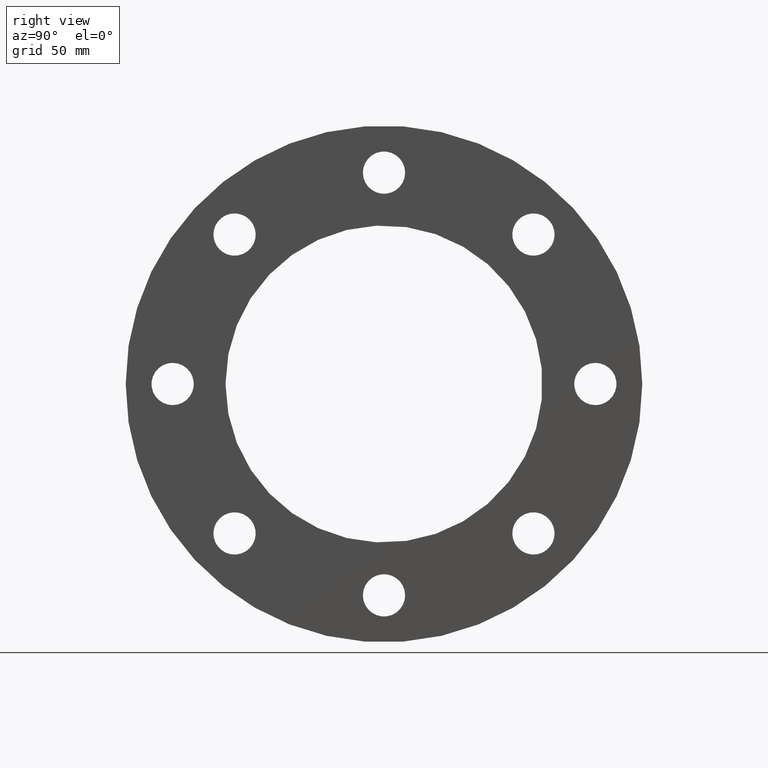
[diagram: clean part render]
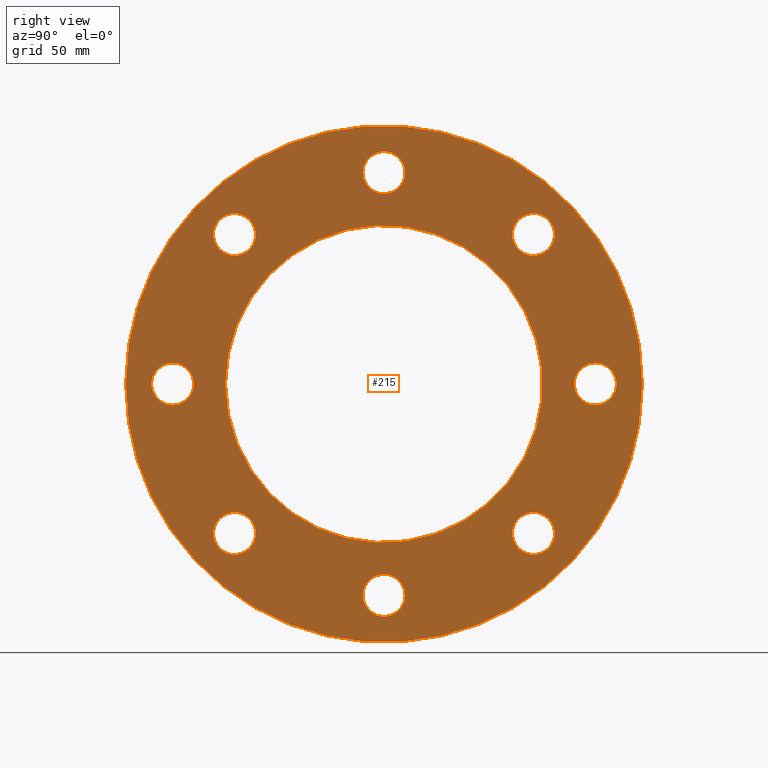
[diagram: same view with one face highlighted and labeled with its STEP entity id]
A machine part, right view. The second image highlights one B-rep face of the part: STEP entity #215.
In plain terms, the highlighted planar face has unit normal (1, 0, 0).
Its self-contained STEP definition (entity closure, byte-faithful):
#16=PLANE('',#245);
#26=FACE_BOUND('',#75,.T.);
#27=FACE_BOUND('',#76,.T.);
#28=FACE_BOUND('',#77,.T.);
#29=FACE_BOUND('',#78,.T.);
#30=FACE_BOUND('',#79,.T.);
#31=FACE_BOUND('',#80,.T.);
#32=FACE_BOUND('',#81,.T.);
#33=FACE_BOUND('',#82,.T.);
#34=FACE_BOUND('',#83,.T.);
#54=FACE_OUTER_BOUND('',#74,.T.);
#74=EDGE_LOOP('',(#174));
#75=EDGE_LOOP('',(#175));
#76=EDGE_LOOP('',(#176));
#77=EDGE_LOOP('',(#177));
#78=EDGE_LOOP('',(#178));
#79=EDGE_LOOP('',(#179));
#80=EDGE_LOOP('',(#180));
#81=EDGE_LOOP('',(#181));
#82=EDGE_LOOP('',(#182));
#83=EDGE_LOOP('',(#183));
#99=CIRCLE('',#223,9.);
#101=CIRCLE('',#226,9.);
#103=CIRCLE('',#229,9.);
#105=CIRCLE('',#232,9.);
#107=CIRCLE('',#235,9.);
#109=CIRCLE('',#238,9.);
#111=CIRCLE('',#241,9.);
#113=CIRCLE('',#244,9.);
#114=CIRCLE('',#246,110.);
#115=CIRCLE('',#247,67.5);
#119=VERTEX_POINT('',#323);
#121=VERTEX_POINT('',#328);
#123=VERTEX_POINT('',#333);
#125=VERTEX_POINT('',#338);
#127=VERTEX_POINT('',#343);
#129=VERTEX_POINT('',#348);
#131=VERTEX_POINT('',#353);
#133=VERTEX_POINT('',#358);
#134=VERTEX_POINT('',#361);
#135=VERTEX_POINT('',#363);
#139=EDGE_CURVE('',#119,#119,#99,.T.);
#141=EDGE_CURVE('',#121,#121,#101,.T.);
#143=EDGE_CURVE('',#123,#123,#103,.T.);
#145=EDGE_CURVE('',#125,#125,#105,.T.);
#147=EDGE_CURVE('',#127,#127,#107,.T.);
#149=EDGE_CURVE('',#129,#129,#109,.T.);
#151=EDGE_CURVE('',#131,#131,#111,.T.);
#153=EDGE_CURVE('',#133,#133,#113,.T.);
#154=EDGE_CURVE('',#134,#134,#114,.T.);
#155=EDGE_CURVE('',#135,#135,#115,.T.);
#174=ORIENTED_EDGE('',*,*,#154,.F.);
#175=ORIENTED_EDGE('',*,*,#139,.T.);
#176=ORIENTED_EDGE('',*,*,#141,.T.);
#177=ORIENTED_EDGE('',*,*,#143,.T.);
#178=ORIENTED_EDGE('',*,*,#145,.T.);
#179=ORIENTED_EDGE('',*,*,#147,.T.);
#180=ORIENTED_EDGE('',*,*,#149,.T.);
#181=ORIENTED_EDGE('',*,*,#151,.T.);
#182=ORIENTED_EDGE('',*,*,#153,.T.);
#183=ORIENTED_EDGE('',*,*,#155,.T.);
#215=ADVANCED_FACE('',(#54,#26,#27,#28,#29,#30,#31,#32,#33,#34),#16,.T.);
#223=AXIS2_PLACEMENT_3D('',#324,#259,#260);
#226=AXIS2_PLACEMENT_3D('',#329,#265,#266);
#229=AXIS2_PLACEMENT_3D('',#334,#271,#272);
#232=AXIS2_PLACEMENT_3D('',#339,#277,#278);
#235=AXIS2_PLACEMENT_3D('',#344,#283,#284);
#238=AXIS2_PLACEMENT_3D('',#349,#289,#290);
#241=AXIS2_PLACEMENT_3D('',#354,#295,#296);
#244=AXIS2_PLACEMENT_3D('',#359,#301,#302);
#245=AXIS2_PLACEMENT_3D('',#360,#303,#304);
#246=AXIS2_PLACEMENT_3D('',#362,#305,#306);
#247=AXIS2_PLACEMENT_3D('',#364,#307,#308);
#259=DIRECTION('center_axis',(-1.,0.,0.));
#260=DIRECTION('ref_axis',(0.,-0.707106781186548,0.707106781186547));
#265=DIRECTION('center_axis',(-1.,0.,0.));
#266=DIRECTION('ref_axis',(0.,-1.,-1.2335811384724E-16));
#271=DIRECTION('center_axis',(-1.,0.,0.));
#272=DIRECTION('ref_axis',(0.,-0.707106781186547,-0.707106781186548));
#277=DIRECTION('center_axis',(-1.,0.,0.));
#278=DIRECTION('ref_axis',(0.,1.2335811384724E-16,-1.));
#283=DIRECTION('center_axis',(-1.,0.,0.));
#284=DIRECTION('ref_axis',(0.,0.707106781186548,-0.707106781186547));
#289=DIRECTION('center_axis',(-1.,0.,0.));
#290=DIRECTION('ref_axis',(0.,1.,0.));
#295=DIRECTION('center_axis',(-1.,0.,0.));
#296=DIRECTION('ref_axis',(0.,0.707106781186547,0.707106781186548));
#301=DIRECTION('center_axis',(-1.,0.,0.));
#302=DIRECTION('ref_axis',(0.,0.,1.));
#303=DIRECTION('center_axis',(1.,0.,0.));
#304=DIRECTION('ref_axis',(0.,0.,-1.));
#305=DIRECTION('center_axis',(-1.,0.,0.));
#306=DIRECTION('ref_axis',(0.,0.,1.));
#307=DIRECTION('center_axis',(-1.,0.,0.));
#308=DIRECTION('ref_axis',(0.,0.,1.));
#323=CARTESIAN_POINT('',(11.,70.0035713374682,57.2756492761104));
#324=CARTESIAN_POINT('Origin',(11.,63.6396103067893,63.6396103067893));
#328=CARTESIAN_POINT('',(11.,8.99999999999999,90.));
#329=CARTESIAN_POINT('Origin',(11.,-1.77635683940025E-14,90.));
#333=CARTESIAN_POINT('',(11.,-57.2756492761104,70.0035713374682));
#334=CARTESIAN_POINT('Origin',(11.,-63.6396103067893,63.6396103067893));
#338=CARTESIAN_POINT('',(11.,-90.,8.99999999999999));
#339=CARTESIAN_POINT('Origin',(11.,-90.,-1.77635683940025E-14));
#343=CARTESIAN_POINT('',(11.,-70.0035713374682,-57.2756492761104));
#344=CARTESIAN_POINT('Origin',(11.,-63.6396103067893,-63.6396103067893));
#348=CARTESIAN_POINT('',(11.,-9.,-90.));
#349=CARTESIAN_POINT('Origin',(11.,0.,-90.));
#353=CARTESIAN_POINT('',(11.,57.2756492761104,-70.0035713374682));
#354=CARTESIAN_POINT('Origin',(11.,63.6396103067893,-63.6396103067893));
#358=CARTESIAN_POINT('',(11.,90.,-9.));
#359=CARTESIAN_POINT('Origin',(11.,90.,0.));
#360=CARTESIAN_POINT('Origin',(11.,-110.,0.));
#361=CARTESIAN_POINT('',(11.,-110.,0.));
#362=CARTESIAN_POINT('Origin',(11.,0.,0.));
#363=CARTESIAN_POINT('',(11.,-67.5,0.));
#364=CARTESIAN_POINT('Origin',(11.,0.,0.));